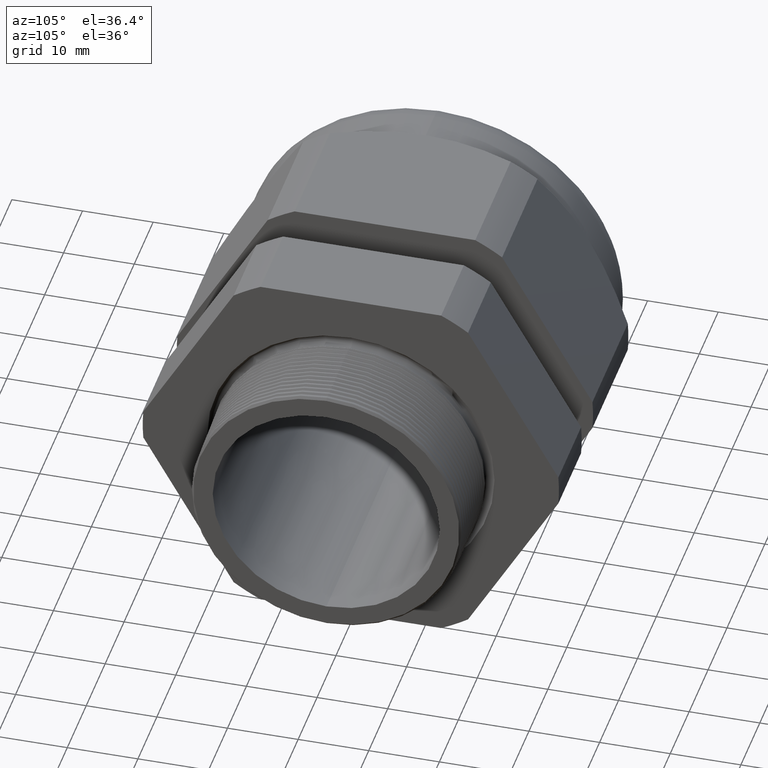
[diagram: clean part render]
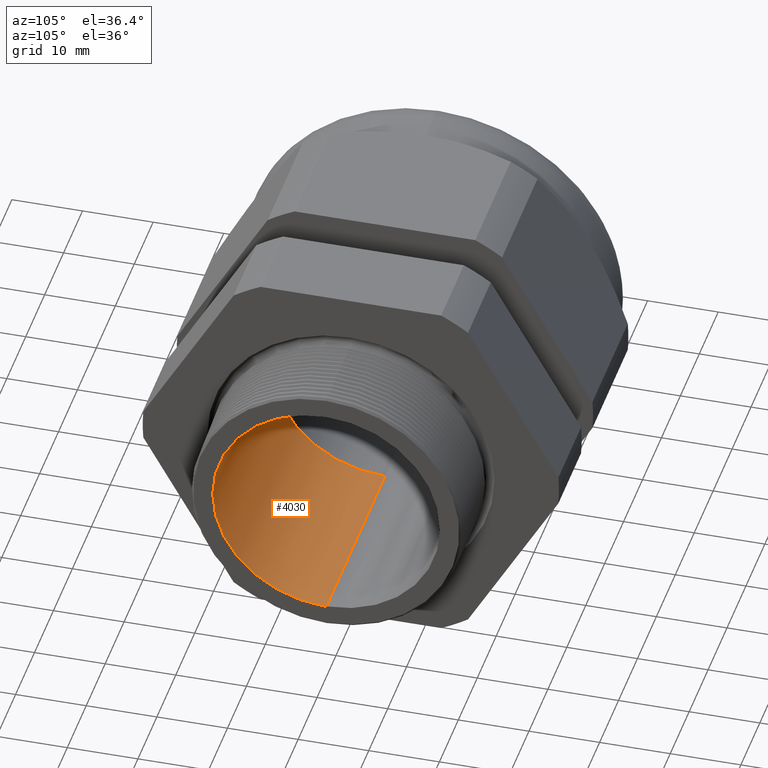
[diagram: same view with one face highlighted and labeled with its STEP entity id]
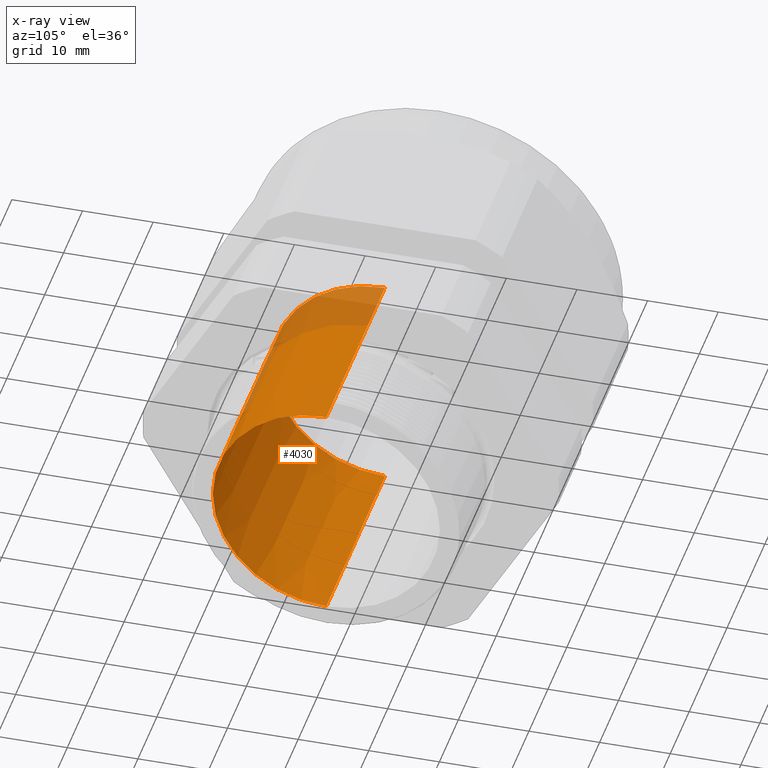
[diagram: x-ray of the same camera — body ghosted, the highlighted face saturated]
A machine part, auxiliary view. The second image highlights one B-rep face of the part: STEP entity #4030.
The next image is the same camera in x-ray: the body ghosted, the highlighted face saturated — about 11% of this face is hidden behind the body in this view.
In plain terms, the highlighted conical surface has half-angle 0.145 deg.
Its self-contained STEP definition (entity closure, byte-faithful):
#1416 = CONICAL_SURFACE ( 'NONE', #1481, 0.6300000000000000000, 0.002530777649680375600 ) ;
#1417 = FACE_OUTER_BOUND ( 'NONE', #4031, .T. ) ;
#1478 = DIRECTION ( 'NONE',  ( 0.0000000000000000000, 0.0000000000000000000, -1.000000000000000000 ) ) ;
#1479 = DIRECTION ( 'NONE',  ( 1.000000000000000000, 0.0000000000000000000, 0.0000000000000000000 ) ) ;
#1480 = CARTESIAN_POINT ( 'NONE',  ( -1.018802799999999800, 0.0000000000000000000, 0.0000000000000000000 ) ) ;
#1481 = AXIS2_PLACEMENT_3D ( 'NONE', #1480, #1479, #1478 ) ;
#1513 = CARTESIAN_POINT ( 'NONE',  ( -1.018802799999999800, 7.715274834628325400E-017, 0.6300000000000000000 ) ) ;
#1514 = DIRECTION ( 'NONE',  ( 0.0000000000000000000, 0.0000000000000000000, -1.000000000000000000 ) ) ;
#1515 = DIRECTION ( 'NONE',  ( 1.000000000000000000, 0.0000000000000000000, 0.0000000000000000000 ) ) ;
#1516 = CARTESIAN_POINT ( 'NONE',  ( -1.018802799999999800, 0.0000000000000000000, 0.0000000000000000000 ) ) ;
#1517 = AXIS2_PLACEMENT_3D ( 'NONE', #1516, #1515, #1514 ) ;
#1518 = CIRCLE ( 'NONE', #1517, 0.6300000000000000000 ) ;
#1574 = CARTESIAN_POINT ( 'NONE',  ( -1.018802799999999800, 0.0000000000000000000, -0.6300000000000000000 ) ) ;
#1608 = CARTESIAN_POINT ( 'NONE',  ( 0.2000000000000000400, 0.0000000000000000000, -0.6330845254709034400 ) ) ;
#1609 = CARTESIAN_POINT ( 'NONE',  ( 0.2000000000000000400, 7.753049377076629200E-017, 0.6330845254709034400 ) ) ;
#1610 = DIRECTION ( 'NONE',  ( 0.9999967975839531000, 3.099305439608670900E-019, 0.002530774948145480100 ) ) ;
#1611 = VECTOR ( 'NONE', #1610, 39.37007874015748100 ) ;
#1612 = CARTESIAN_POINT ( 'NONE',  ( -1.018802799999999800, 7.715274834628325400E-017, 0.6300000000000000000 ) ) ;
#1613 = LINE ( 'NONE', #1612, #1611 ) ;
#1658 = DIRECTION ( 'NONE',  ( 0.9999967975839531000, 0.0000000000000000000, -0.002530774948145480100 ) ) ;
#1659 = VECTOR ( 'NONE', #1658, 39.37007874015748100 ) ;
#1660 = CARTESIAN_POINT ( 'NONE',  ( -1.018802799999999800, 0.0000000000000000000, -0.6300000000000000000 ) ) ;
#1661 = LINE ( 'NONE', #1660, #1659 ) ;
#1662 = DIRECTION ( 'NONE',  ( 0.0000000000000000000, 0.0000000000000000000, -1.000000000000000000 ) ) ;
#1663 = DIRECTION ( 'NONE',  ( 1.000000000000000000, 0.0000000000000000000, 0.0000000000000000000 ) ) ;
#1664 = CARTESIAN_POINT ( 'NONE',  ( 0.2000000000000000400, 0.0000000000000000000, 0.0000000000000000000 ) ) ;
#1665 = AXIS2_PLACEMENT_3D ( 'NONE', #1664, #1663, #1662 ) ;
#1666 = CIRCLE ( 'NONE', #1665, 0.6330845254709034400 ) ;
#4030 = ADVANCED_FACE ( 'NONE', ( #1417 ), #1416, .F. ) ;
#4031 = EDGE_LOOP ( 'NONE', ( #4032, #4132, #4135, #4142 ) ) ;
#4032 = ORIENTED_EDGE ( 'NONE', *, *, #4080, .F. ) ;
#4080 = EDGE_CURVE ( 'NONE', #4081, #4082, #1518, .T. ) ;
#4081 = VERTEX_POINT ( 'NONE', #1513 ) ;
#4082 = VERTEX_POINT ( 'NONE', #1574 ) ;
#4132 = ORIENTED_EDGE ( 'NONE', *, *, #4133, .T. ) ;
#4133 = EDGE_CURVE ( 'NONE', #4081, #4134, #1613, .T. ) ;
#4134 = VERTEX_POINT ( 'NONE', #1609 ) ;
#4135 = ORIENTED_EDGE ( 'NONE', *, *, #4141, .T. ) ;
#4136 = VERTEX_POINT ( 'NONE', #1608 ) ;
#4141 = EDGE_CURVE ( 'NONE', #4134, #4136, #1666, .T. ) ;
#4142 = ORIENTED_EDGE ( 'NONE', *, *, #4143, .F. ) ;
#4143 = EDGE_CURVE ( 'NONE', #4082, #4136, #1661, .T. ) ;